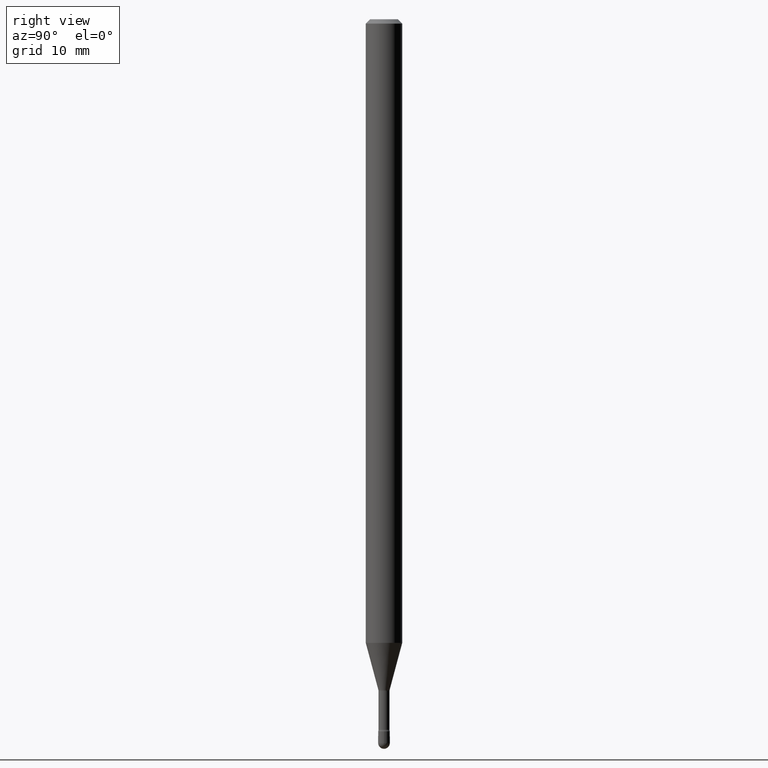
[diagram: clean part render]
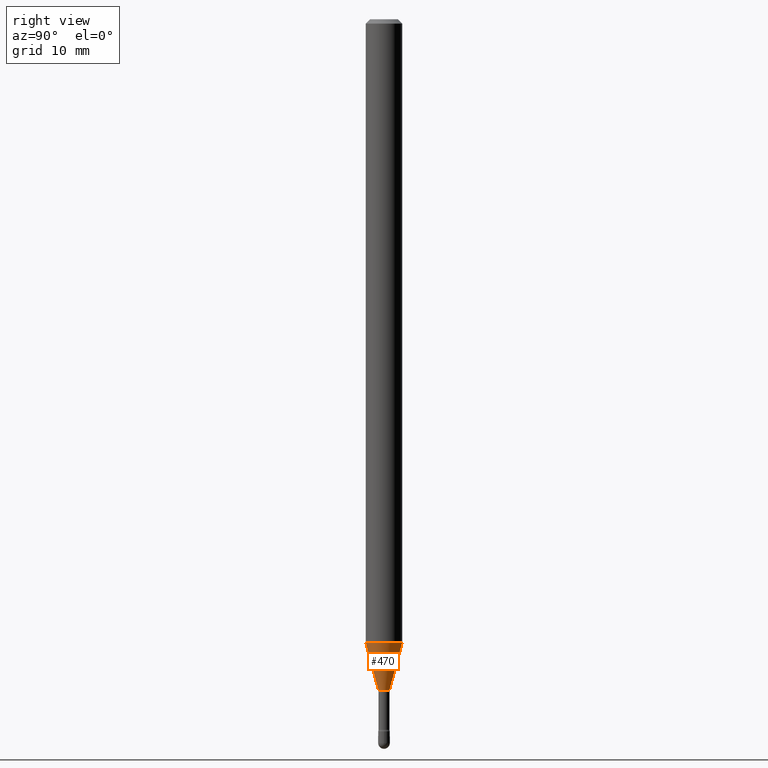
[diagram: same view with one face highlighted and labeled with its STEP entity id]
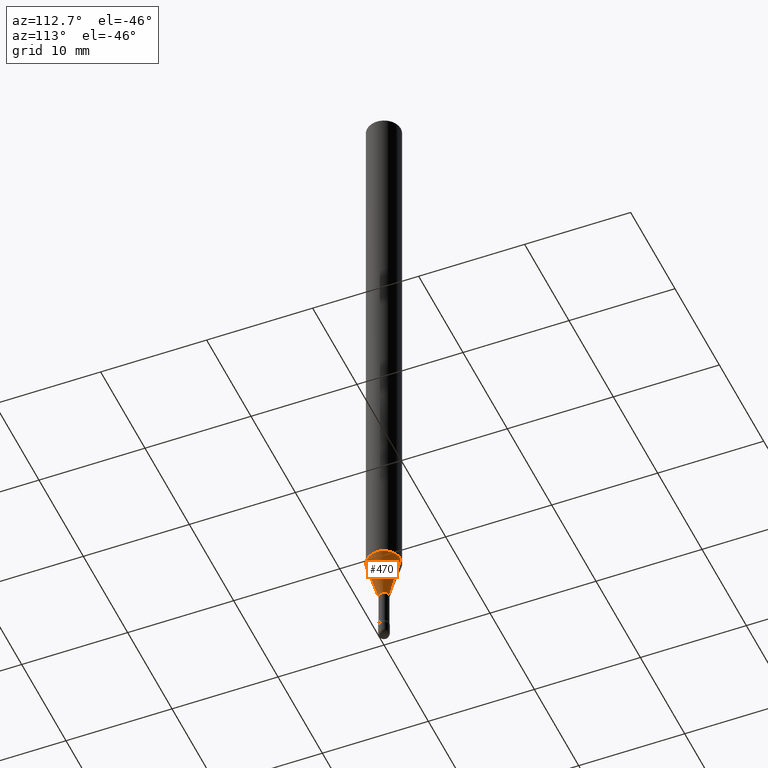
[diagram: same view with one face highlighted and labeled with its STEP entity id]
A machine part, right view. The second image highlights one B-rep face of the part: STEP entity #470.
A second angle (auxiliary view) of the same face is appended — the face is thin or edge-on in the first view.
In plain terms, the highlighted conical surface has half-angle 15 deg.
Its self-contained STEP definition (entity closure, byte-faithful):
#3 = CARTESIAN_POINT ( 'NONE',  ( 5.619806819669917985E-29, -8.023899895679087068E-15, -2.298092501787273090 ) ) ;
#7 = CIRCLE ( 'NONE', #343, 0.01931111260566397564 ) ;
#26 = CIRCLE ( 'NONE', #106, 0.06250000000000000000 ) ;
#33 = EDGE_CURVE ( 'NONE', #94, #248, #26, .T. ) ;
#38 = DIRECTION ( 'NONE',  ( -2.445422373250545997E-29, 3.491547833448277962E-15, 1.000000000000000000 ) ) ;
#52 = FACE_OUTER_BOUND ( 'NONE', #341, .T. ) ;
#60 = CARTESIAN_POINT ( 'NONE',  ( 1.372137078140545619E-16, 0.01931111260565595081, -2.298092501787273090 ) ) ;
#94 = VERTEX_POINT ( 'NONE', #156 ) ;
#106 = AXIS2_PLACEMENT_3D ( 'NONE', #288, #447, #113 ) ;
#107 = VECTOR ( 'NONE', #448, 39.37007874015748854 ) ;
#113 = DIRECTION ( 'NONE',  ( -6.982962677686265922E-15, -1.000000000000000000, 4.370956789862821150E-15 ) ) ;
#135 = CARTESIAN_POINT ( 'NONE',  ( -1.348487785898921104E-16, -0.01931111260567200047, -2.298092501787273090 ) ) ;
#140 = AXIS2_PLACEMENT_3D ( 'NONE', #3, #280, #237 ) ;
#156 = CARTESIAN_POINT ( 'NONE',  ( -4.364351673553395553E-16, -0.06250000000000748013, -2.136909379709240220 ) ) ;
#167 = VECTOR ( 'NONE', #517, 39.37007874015748143 ) ;
#177 = CARTESIAN_POINT ( 'NONE',  ( 5.619806819669917985E-29, -8.023899895679087068E-15, -2.298092501787273090 ) ) ;
#237 = DIRECTION ( 'NONE',  ( -6.982962677686265922E-15, -1.000000000000000000, 0.000000000000000000 ) ) ;
#248 = VERTEX_POINT ( 'NONE', #417 ) ;
#280 = DIRECTION ( 'NONE',  ( -2.445422373250545997E-29, 3.491547833448277962E-15, 1.000000000000000000 ) ) ;
#287 = LINE ( 'NONE', #60, #107 ) ;
#288 = CARTESIAN_POINT ( 'NONE',  ( 5.225646006749922120E-29, -7.461121314999102077E-15, -2.136909379709240220 ) ) ;
#298 = CONICAL_SURFACE ( 'NONE', #140, 0.01931111260566397564, 0.2617993877991498519 ) ;
#335 = EDGE_CURVE ( 'NONE', #483, #514, #7, .T. ) ;
#341 = EDGE_LOOP ( 'NONE', ( #552, #559, #443, #525 ) ) ;
#343 = AXIS2_PLACEMENT_3D ( 'NONE', #177, #38, #366 ) ;
#349 = EDGE_CURVE ( 'NONE', #483, #94, #522, .T. ) ;
#366 = DIRECTION ( 'NONE',  ( -6.982962677686265922E-15, -1.000000000000000000, 0.000000000000000000 ) ) ;
#374 = CARTESIAN_POINT ( 'NONE',  ( -1.348487785898921104E-16, -0.01931111260567200047, -2.298092501787273090 ) ) ;
#417 = CARTESIAN_POINT ( 'NONE',  ( 4.440892098501145824E-16, 0.06249999999999251987, -2.136909379709240664 ) ) ;
#443 = ORIENTED_EDGE ( 'NONE', *, *, #33, .F. ) ;
#447 = DIRECTION ( 'NONE',  ( -2.445422373250545997E-29, 3.491547833448277962E-15, 1.000000000000000000 ) ) ;
#448 = DIRECTION ( 'NONE',  ( 1.839019923739597160E-15, 0.2588190451025245142, 0.9659258262890670910 ) ) ;
#470 = ADVANCED_FACE ( 'NONE', ( #52 ), #298, .T. ) ;
#482 = CARTESIAN_POINT ( 'NONE',  ( 2.906514588320848063E-16, 0.01931111260565595081, -2.298092501787273090 ) ) ;
#483 = VERTEX_POINT ( 'NONE', #374 ) ;
#513 = EDGE_CURVE ( 'NONE', #514, #248, #287, .T. ) ;
#514 = VERTEX_POINT ( 'NONE', #482 ) ;
#517 = DIRECTION ( 'NONE',  ( -1.807323732225327378E-15, -0.2588190451025177974, 0.9659258262890690894 ) ) ;
#522 = LINE ( 'NONE', #135, #167 ) ;
#525 = ORIENTED_EDGE ( 'NONE', *, *, #349, .F. ) ;
#552 = ORIENTED_EDGE ( 'NONE', *, *, #335, .T. ) ;
#559 = ORIENTED_EDGE ( 'NONE', *, *, #513, .T. ) ;